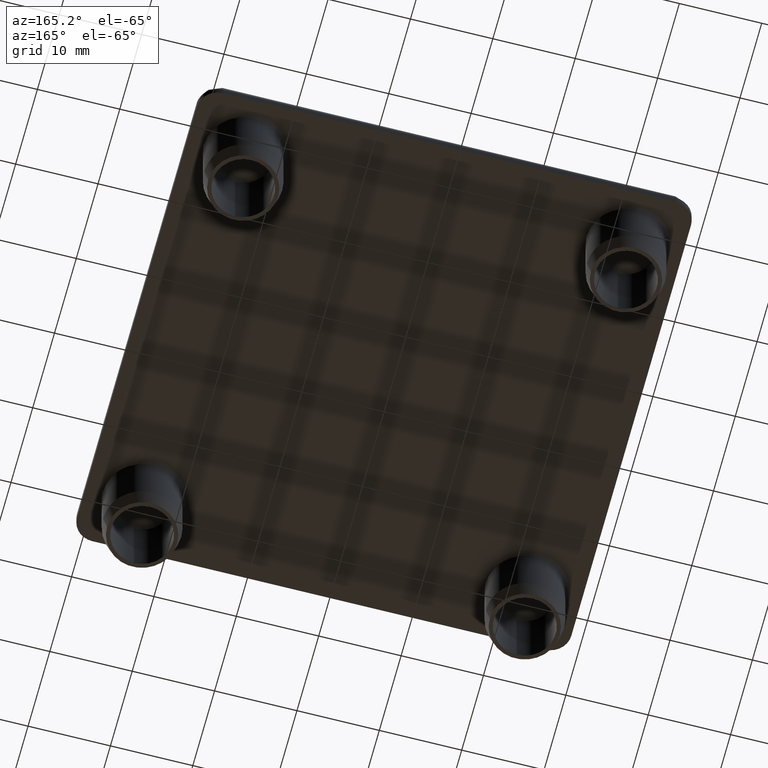
[diagram: clean part render]
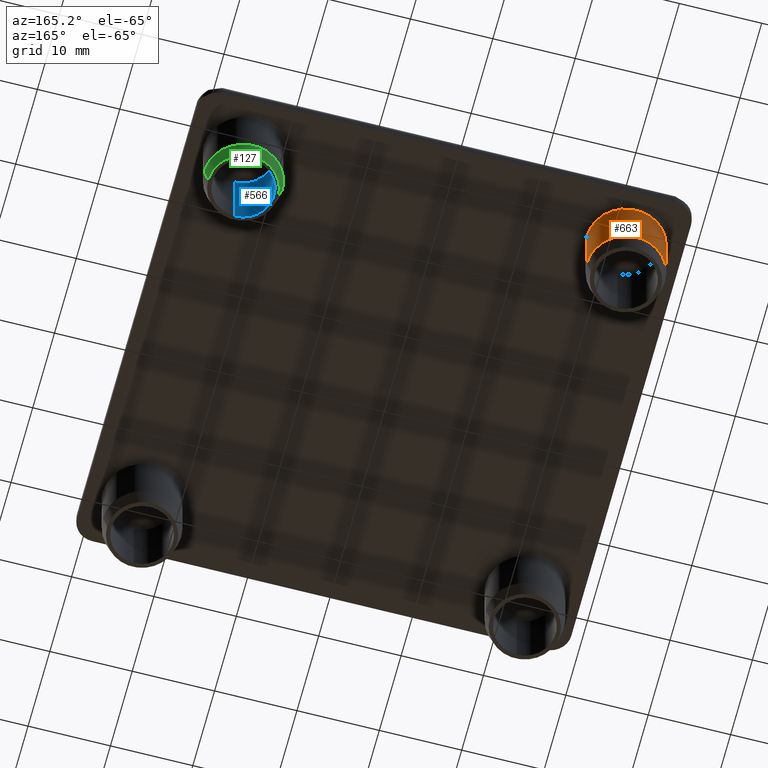
[diagram: same view with three faces highlighted in distinct colors, each labeled with its STEP entity id]
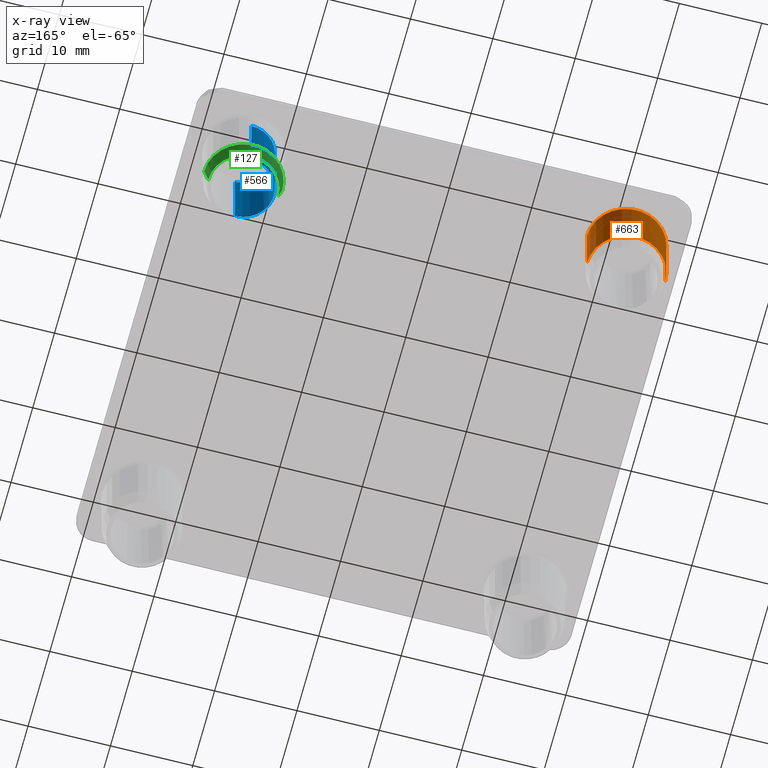
[diagram: x-ray of the same camera — body ghosted, the three highlighted faces saturated]
A machine part, auxiliary view with three faces highlighted in distinct colors.
The next image is the same camera in x-ray (body ghosted, the three faces saturated) — at least one of them is partly hidden behind the body in this view.
Their STEP definitions:

[orange] entity #663 — the highlighted cylindrical surface (partial cylindrical patch) has radius 4.75 mm, axis along (-0, 0, 1).
#39=CARTESIAN_POINT('',(-27.979999999999990,53.230000000000004,-8.000000000000004));
#40=VERTEX_POINT('',#39);
#47=CARTESIAN_POINT('',(-18.479999999999990,53.230000000000004,-8.0));
#48=VERTEX_POINT('',#47);
#49=CARTESIAN_POINT('',(-23.229999999999990,53.230000000000004,-8.0));
#50=DIRECTION('',(-1.224647E-016,0.0,1.0));
#51=DIRECTION('',(1.0,0.0,1.224647E-016));
#52=AXIS2_PLACEMENT_3D('',#49,#50,#51);
#53=CIRCLE('',#52,4.750000000000002);
#54=EDGE_CURVE('',#48,#40,#53,.T.);
#487=CARTESIAN_POINT('',(-18.479999999999990,53.230000000000004,-0.500000000000002));
#488=VERTEX_POINT('',#487);
#489=CARTESIAN_POINT('',(-27.980000000000004,53.230000000000004,-0.500000000000003));
#490=VERTEX_POINT('',#489);
#636=CARTESIAN_POINT('',(-23.229999999999990,53.230000000000004,-8.000000010000001));
#637=DIRECTION('',(-1.224647E-016,0.0,1.0));
#638=DIRECTION('',(0.0,-1.0,0.0));
#639=AXIS2_PLACEMENT_3D('',#636,#637,#638);
#640=CYLINDRICAL_SURFACE('',#639,4.750000000000002);
#641=ORIENTED_EDGE('',*,*,#54,.T.);
#642=CARTESIAN_POINT('',(-27.979999999999990,53.230000000000004,-8.000000000000004));
#643=DIRECTION('',(0.0,0.0,1.0));
#644=VECTOR('',#643,7.500000000000000);
#645=LINE('',#642,#644);
#646=EDGE_CURVE('',#40,#490,#645,.T.);
#647=ORIENTED_EDGE('',*,*,#646,.T.);
#648=CARTESIAN_POINT('',(-23.229999999999990,53.230000000000004,-0.500000000000002));
#649=DIRECTION('',(1.224647E-016,0.0,-1.0));
#650=DIRECTION('',(-1.0,0.0,-1.224647E-016));
#651=AXIS2_PLACEMENT_3D('',#648,#649,#650);
#652=CIRCLE('',#651,4.750000000000002);
#653=EDGE_CURVE('',#490,#488,#652,.T.);
#654=ORIENTED_EDGE('',*,*,#653,.T.);
#655=CARTESIAN_POINT('',(-18.479999999999990,53.230000000000004,-8.0));
#656=DIRECTION('',(0.0,0.0,1.0));
#657=VECTOR('',#656,7.500000000000000);
#658=LINE('',#655,#657);
#659=EDGE_CURVE('',#48,#488,#658,.T.);
#660=ORIENTED_EDGE('',*,*,#659,.F.);
#661=EDGE_LOOP('',(#641,#647,#654,#660));
#662=FACE_OUTER_BOUND('',#661,.T.);
#663=ADVANCED_FACE('',(#662),#640,.T.);

[blue] entity #566 — the highlighted cylindrical surface (edge-blend (fillet) strip) has radius 3.75 mm, axis along (-0, 0, 1).
#350=CARTESIAN_POINT('',(19.480000000000008,53.229999999999990,-0.499999999999997));
#351=VERTEX_POINT('',#350);
#352=CARTESIAN_POINT('',(23.230000000000015,49.479999999999990,-0.499999999999996));
#353=VERTEX_POINT('',#352);
#354=CARTESIAN_POINT('',(23.230000000000015,53.229999999999990,-0.499999999999996));
#355=DIRECTION('',(-1.224647E-016,0.0,1.0));
#356=DIRECTION('',(1.0,0.0,1.224647E-016));
#357=AXIS2_PLACEMENT_3D('',#354,#355,#356);
#358=CIRCLE('',#357,3.750000000000004);
#359=EDGE_CURVE('',#351,#353,#358,.T.);
#526=CARTESIAN_POINT('',(23.230000000000015,53.229999999999990,-10.000000009999994));
#527=DIRECTION('',(-1.224647E-016,0.0,1.0));
#528=DIRECTION('',(1.0,0.0,1.224647E-016));
#529=AXIS2_PLACEMENT_3D('',#526,#527,#528);
#530=CYLINDRICAL_SURFACE('',#529,3.750000000000000);
#531=CARTESIAN_POINT('',(23.230000000000015,56.980000000000004,-9.999999999999996));
#532=VERTEX_POINT('',#531);
#533=CARTESIAN_POINT('',(23.230000000000015,49.479999999999990,-9.999999999999996));
#534=VERTEX_POINT('',#533);
#535=CARTESIAN_POINT('',(23.230000000000015,53.229999999999990,-9.999999999999996));
#536=DIRECTION('',(-1.224647E-016,0.0,1.0));
#537=DIRECTION('',(0.0,-1.0,0.0));
#538=AXIS2_PLACEMENT_3D('',#535,#536,#537);
#539=CIRCLE('',#538,3.750000000000000);
#540=EDGE_CURVE('',#532,#534,#539,.T.);
#541=ORIENTED_EDGE('',*,*,#540,.F.);
#542=CARTESIAN_POINT('',(23.230000000000015,56.980000000000004,-0.499999999999996));
#543=VERTEX_POINT('',#542);
#544=CARTESIAN_POINT('',(23.230000000000015,56.980000000000004,-9.999999999999996));
#545=DIRECTION('',(0.0,0.0,1.0));
#546=VECTOR('',#545,9.500000000000000);
#547=LINE('',#544,#546);
#548=EDGE_CURVE('',#532,#543,#547,.T.);
#549=ORIENTED_EDGE('',*,*,#548,.T.);
#550=CARTESIAN_POINT('',(23.230000000000015,53.229999999999990,-0.499999999999996));
#551=DIRECTION('',(-1.224647E-016,0.0,1.0));
#552=DIRECTION('',(1.0,0.0,1.224647E-016));
#553=AXIS2_PLACEMENT_3D('',#550,#551,#552);
#554=CIRCLE('',#553,3.750000000000004);
#555=EDGE_CURVE('',#543,#351,#554,.T.);
#556=ORIENTED_EDGE('',*,*,#555,.T.);
#557=ORIENTED_EDGE('',*,*,#359,.T.);
#558=CARTESIAN_POINT('',(23.230000000000015,49.479999999999990,-9.999999999999996));
#559=DIRECTION('',(0.0,0.0,1.0));
#560=VECTOR('',#559,9.500000000000000);
#561=LINE('',#558,#560);
#562=EDGE_CURVE('',#534,#353,#561,.T.);
#563=ORIENTED_EDGE('',*,*,#562,.F.);
#564=EDGE_LOOP('',(#541,#549,#556,#557,#563));
#565=FACE_OUTER_BOUND('',#564,.T.);
#566=ADVANCED_FACE('',(#565),#530,.F.);

[green] entity #127 — the highlighted face is a freeform B-spline surface patch.
#65=CARTESIAN_POINT('',(23.230000000000022,53.229999999999997,-26.999999999999972));
#66=CARTESIAN_POINT('',(23.230000000000022,53.229999999999997,-26.999999999999972));
#67=CARTESIAN_POINT('',(23.230000000000022,53.229999999999997,-26.999999999999972));
#68=CARTESIAN_POINT('',(23.230000000000022,53.229999999999997,-26.999999999999972));
#69=CARTESIAN_POINT('',(23.230000000000022,53.229999999999997,-26.999999999999972));
#70=CARTESIAN_POINT('',(23.230000000000022,53.229999999999997,-26.999999999999972));
#71=CARTESIAN_POINT('',(23.230000000000022,53.229999999999997,-26.999999999999972));
#72=CARTESIAN_POINT('',(23.230000000000022,53.229999999999997,-26.999999999999972));
#73=CARTESIAN_POINT('',(23.230000000000022,53.229999999999997,-26.999999999999972));
#74=CARTESIAN_POINT('',(23.230000000000015,48.242500000000000,-7.049999999999996));
#75=CARTESIAN_POINT('',(28.217500000000019,48.242499999999993,-7.049999999999995));
#76=CARTESIAN_POINT('',(28.217500000000012,53.229999999999997,-7.049999999999996));
#77=CARTESIAN_POINT('',(28.217500000000019,58.217499999999987,-7.049999999999995));
#78=CARTESIAN_POINT('',(23.230000000000015,58.217499999999987,-7.049999999999996));
#79=CARTESIAN_POINT('',(18.242500000000017,58.217499999999987,-7.049999999999995));
#80=CARTESIAN_POINT('',(18.242500000000017,53.229999999999997,-7.049999999999996));
#81=CARTESIAN_POINT('',(18.242500000000017,48.242499999999993,-7.049999999999995));
#82=CARTESIAN_POINT('',(23.230000000000015,48.242500000000000,-7.049999999999996));
#90=(BOUNDED_SURFACE()B_SPLINE_SURFACE(2,1,((#65,#74),(#66,#75),(#67,#76),(#68,#77),(#69,#78),(#70,#79),(#71,#80),(#72,#81),(#73,#82)),.UNSPECIFIED.,.T.,.F.,.U.)B_SPLINE_SURFACE_WITH_KNOTS((3,2,2,2,3),(2,2),(0.0,0.250000000000000,0.500000000000000,0.750000000000000,1.0),(0.0,1.0),.UNSPECIFIED.)GEOMETRIC_REPRESENTATION_ITEM()RATIONAL_B_SPLINE_SURFACE(((1.0,1.0),(0.707106781186548,0.707106781186548),(1.0,1.0),(0.707106781186548,0.707106781186548),(1.0,1.0),(0.707106781186548,0.707106781186548),(1.0,1.0),(0.707106781186548,0.707106781186548),(1.0,1.0)))REPRESENTATION_ITEM('')SURFACE());
#91=CARTESIAN_POINT('',(18.980000000000008,53.229999999999990,-9.999999999999996));
#92=VERTEX_POINT('',#91);
#93=CARTESIAN_POINT('',(27.480000000000015,53.229999999999990,-9.999999999999996));
#94=VERTEX_POINT('',#93);
#95=CARTESIAN_POINT('',(23.230000000000015,53.229999999999990,-9.999999999999996));
#96=DIRECTION('',(1.224647E-016,0.0,-1.0));
#97=DIRECTION('',(-1.0,0.0,-1.224647E-016));
#98=AXIS2_PLACEMENT_3D('',#95,#96,#97);
#99=CIRCLE('',#98,4.249999999999997);
#100=EDGE_CURVE('',#92,#94,#99,.T.);
#101=ORIENTED_EDGE('',*,*,#100,.F.);
#102=CARTESIAN_POINT('',(18.480000000000008,53.229999999999990,-7.999999999999996));
#103=VERTEX_POINT('',#102);
#104=CARTESIAN_POINT('',(18.980000000000008,53.229999999999990,-9.999999999999996));
#105=DIRECTION('',(-0.242535625036333,0.0,0.970142500145332));
#106=VECTOR('',#105,2.061552812808830);
#107=LINE('',#104,#106);
#108=EDGE_CURVE('',#92,#103,#107,.T.);
#109=ORIENTED_EDGE('',*,*,#108,.T.);
#110=CARTESIAN_POINT('',(27.980000000000015,53.229999999999990,-7.999999999999996));
#111=VERTEX_POINT('',#110);
#112=CARTESIAN_POINT('',(23.230000000000015,53.229999999999990,-7.999999999999996));
#113=DIRECTION('',(-1.224647E-016,0.0,1.0));
#114=DIRECTION('',(-1.0,0.0,-1.224647E-016));
#115=AXIS2_PLACEMENT_3D('',#112,#113,#114);
#116=CIRCLE('',#115,4.749999999999997);
#117=EDGE_CURVE('',#111,#103,#116,.T.);
#118=ORIENTED_EDGE('',*,*,#117,.F.);
#119=CARTESIAN_POINT('',(27.480000000000015,53.229999999999990,-9.999999999999996));
#120=DIRECTION('',(0.242535625036333,0.0,0.970142500145332));
#121=VECTOR('',#120,2.061552812808830);
#122=LINE('',#119,#121);
#123=EDGE_CURVE('',#94,#111,#122,.T.);
#124=ORIENTED_EDGE('',*,*,#123,.F.);
#125=EDGE_LOOP('',(#101,#109,#118,#124));
#126=FACE_OUTER_BOUND('',#125,.T.);
#127=ADVANCED_FACE('',(#126),#90,.T.);